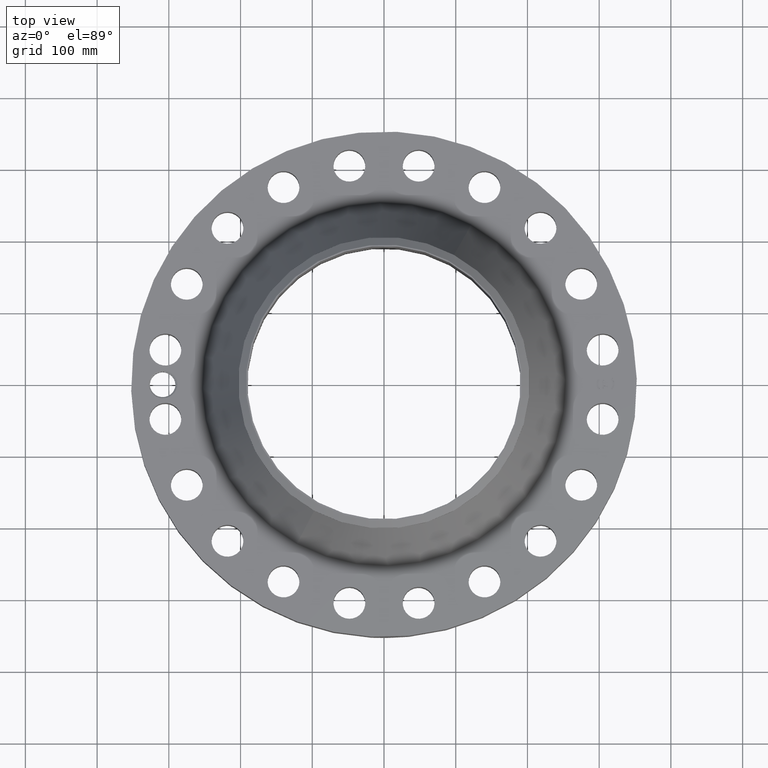
[diagram: clean part render]
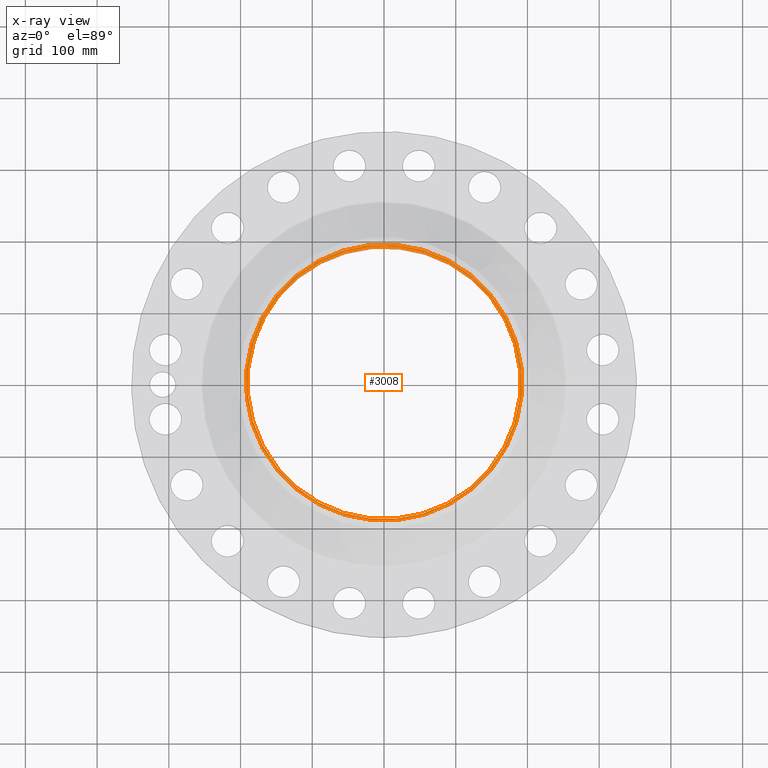
[diagram: x-ray — body ghosted, one internal face saturated and labeled with its STEP entity id]
A machine part, top view, then the same camera in x-ray: the body is ghosted and one INTERNAL B-rep face — a face not visible from any outside direction — is saturated and labeled: STEP entity #3008.
In plain terms, the highlighted planar face has unit normal (0, 0, -1).
Its self-contained STEP definition (entity closure, byte-faithful):
#1587=AXIS2_PLACEMENT_3D('Circle Axis2P3D',#1585,#1586,$) ;
#1655=AXIS2_PLACEMENT_3D('Circle Axis2P3D',#1653,#1654,$) ;
#2984=AXIS2_PLACEMENT_3D('Plane Axis2P3D',#2981,#2982,#2983) ;
#2988=AXIS2_PLACEMENT_3D('Circle Axis2P3D',#2986,#2987,$) ;
#2997=AXIS2_PLACEMENT_3D('Circle Axis2P3D',#2995,#2996,$) ;
#1585=CARTESIAN_POINT('Axis2P3D Location',(0.,0.,8.75000000003)) ;
#1589=CARTESIAN_POINT('Vertex',(3.59569153955,6.5818692142,8.75000000003)) ;
#1591=CARTESIAN_POINT('Vertex',(-3.59569153955,-6.5818692142,8.75000000003)) ;
#1653=CARTESIAN_POINT('Axis2P3D Location',(0.,0.,8.75000000003)) ;
#2981=CARTESIAN_POINT('Axis2P3D Location',(0.,8.00000000003,8.75000000004)) ;
#2986=CARTESIAN_POINT('Axis2P3D Location',(0.,0.,8.75000000004)) ;
#2990=CARTESIAN_POINT('Vertex',(3.63344158196,-6.65097020333,8.75000000004)) ;
#2992=CARTESIAN_POINT('Vertex',(-3.63344158196,6.65097020333,8.75000000004)) ;
#2995=CARTESIAN_POINT('Axis2P3D Location',(0.,0.,8.75000000004)) ;
#1586=DIRECTION('Axis2P3D Direction',(0.,0.,-0.0393700787402)) ;
#1654=DIRECTION('Axis2P3D Direction',(0.,0.,-0.0393700787402)) ;
#2982=DIRECTION('Axis2P3D Direction',(0.,0.,-0.0393700787402)) ;
#2983=DIRECTION('Axis2P3D XDirection',(0.0393700787402,0.,0.)) ;
#2987=DIRECTION('Axis2P3D Direction',(0.,0.,-0.0393700787402)) ;
#2996=DIRECTION('Axis2P3D Direction',(0.,0.,-0.0393700787402)) ;
#3001=ORIENTED_EDGE('',*,*,#2994,.T.) ;
#3002=ORIENTED_EDGE('',*,*,#2999,.T.) ;
#3005=ORIENTED_EDGE('',*,*,#1657,.T.) ;
#3006=ORIENTED_EDGE('',*,*,#1593,.T.) ;
#3007=FACE_BOUND('',#3004,.T.) ;
#3008=ADVANCED_FACE('PartBody',(#3003,#3007),#2985,.F.) ;
#1588=CIRCLE('generated circle',#1587,7.50000000003) ;
#1656=CIRCLE('generated circle',#1655,7.50000000003) ;
#2989=CIRCLE('generated circle',#2988,7.57874015751) ;
#2998=CIRCLE('generated circle',#2997,7.57874015751) ;
#1593=EDGE_CURVE('',#1590,#1592,#1588,.T.) ;
#1657=EDGE_CURVE('',#1592,#1590,#1656,.T.) ;
#2994=EDGE_CURVE('',#2991,#2993,#2989,.F.) ;
#2999=EDGE_CURVE('',#2993,#2991,#2998,.F.) ;
#3000=EDGE_LOOP('',(#3001,#3002)) ;
#3004=EDGE_LOOP('',(#3005,#3006)) ;
#3003=FACE_OUTER_BOUND('',#3000,.T.) ;
#2985=PLANE('',#2984) ;
#1590=VERTEX_POINT('',#1589) ;
#1592=VERTEX_POINT('',#1591) ;
#2991=VERTEX_POINT('',#2990) ;
#2993=VERTEX_POINT('',#2992) ;